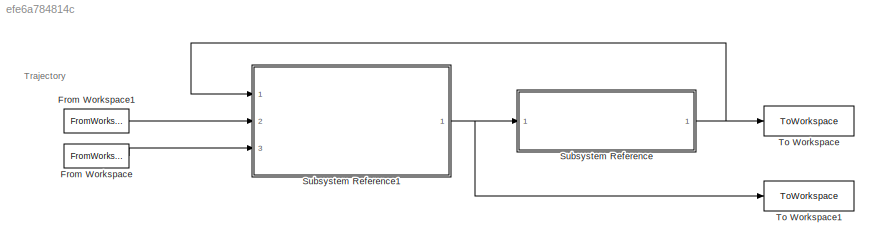
MODEL slx_efe6a784814c
KIND model
CONFIG AbsTol = auto
CONFIG EnableMultiTasking = off
CONFIG FixedStep = Ts
CONFIG MaxStep = auto
CONFIG MinStep = auto
CONFIG RelTol = 1e-3
CONFIG SampleTimeConstraint = Unconstrained
CONFIG SolverName = FixedStepAuto
CONFIG StartTime = 0.0
CONFIG StopTime = tsim
BLOCK [FromWorkspace] From Workspace
  VariableName = u_r_sim
BLOCK [FromWorkspace] From Workspace1
  VariableName = x_r_sim
BLOCK [SubSystem] Subsystem Reference
  Ports = [1, 1]
  ReferencedSubsystem = quatquad_dynamics_sim
  RequestExecContextInheritance = off
BLOCK [SubSystem] Subsystem Reference1
  Ports = [3, 1]
  ReferencedSubsystem = quatquad_controller_sim
  RequestExecContextInheritance = off
BLOCK [ToWorkspace] To Workspace
  FixptAsFi = on
  MaxDataPoints = inf
  Ports = [1]
  SampleTime = -1
  Save2DSignal = 2-D array (concatenate along first dimension)
  VariableName = x
BLOCK [ToWorkspace] To Workspace1
  FixptAsFi = on
  MaxDataPoints = inf
  Ports = [1]
  SampleTime = -1
  Save2DSignal = 2-D array (concatenate along first dimension)
  VariableName = u
ANNOTATION (root): Trajectory
LINE From Workspace1:1 -> Subsystem Reference1:2
LINE From Workspace:1 -> Subsystem Reference1:3
NET Subsystem Reference1:1 -> Subsystem Reference:1, To Workspace1:1
NET Subsystem Reference:1 -> Subsystem Reference1:1, To Workspace:1
note: NET lines group one-source signal fan-out (src -> all destinations, sorted); 1:1 wires keep LINE
